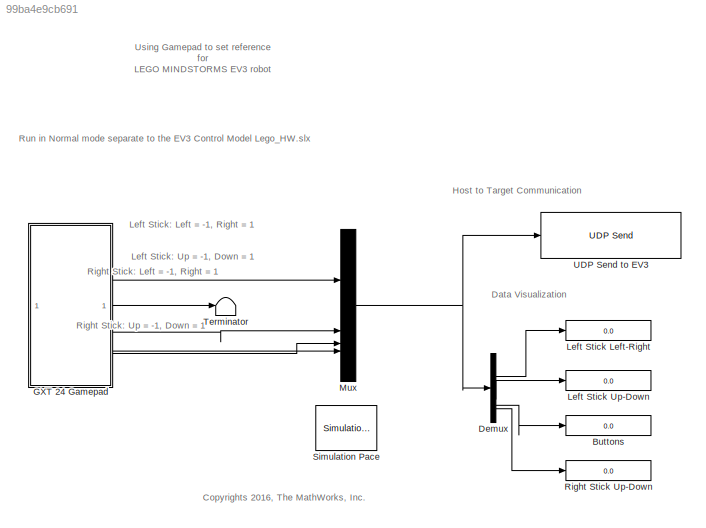
MODEL slx_99ba4e9cb691
KIND model
CONFIG AbsTol = auto
CONFIG EnableMultiTasking = off
CONFIG FixedStep = auto
CONFIG MaxStep = auto
CONFIG MinStep = auto
CONFIG RelTol = 1e-3
CONFIG SampleTimeConstraint = Unconstrained
CONFIG SolverName = VariableStepAuto
CONFIG StartTime = 0.0
CONFIG StopTime = inf
BLOCK [Display] Buttons
  Decimation = 1
BLOCK [Demux] Demux
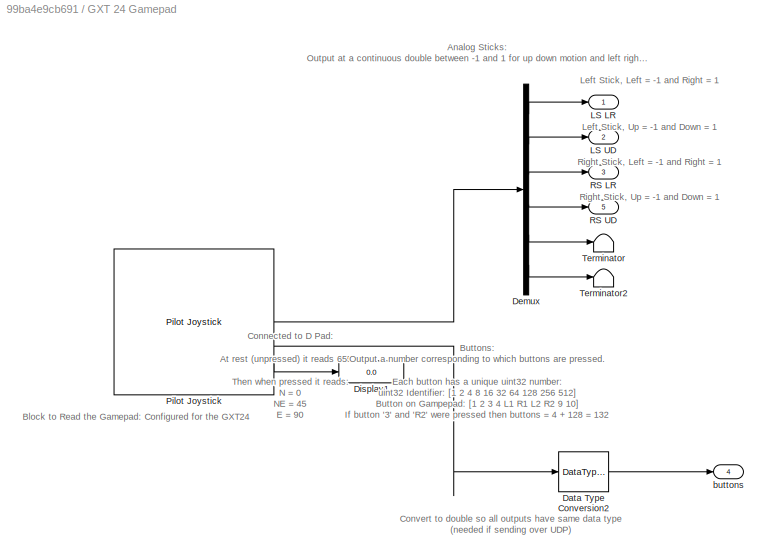
BLOCK [SubSystem] GXT 24 Gamepad
BLOCK [DataTypeConversion] GXT 24 Gamepad/Data Type Conversion2
  OutDataTypeStr = double
  RndMeth = Nearest
  SaturateOnIntegerOverflow = off
BLOCK [Demux] GXT 24 Gamepad/Demux
  Outputs = 6
BLOCK [Display] GXT 24 Gamepad/Display1
  Decimation = 1
BLOCK [Outport] GXT 24 Gamepad/LS LR
  VectorParamsAs1DForOutWhenUnconnected = off
BLOCK [Outport] GXT 24 Gamepad/LS UD
  Port = 2
  VectorParamsAs1DForOutWhenUnconnected = off
BLOCK [Reference] GXT 24 Gamepad/Pilot Joystick  REF=aerolibanimutils/Pilot Joystick
  SourceBlock = aerolibanimutils/Pilot Joystick
  SourceType = PilotJoystick
BLOCK [Outport] GXT 24 Gamepad/RS LR
  Port = 3
  VectorParamsAs1DForOutWhenUnconnected = off
BLOCK [Outport] GXT 24 Gamepad/RS UD
  Port = 5
  VectorParamsAs1DForOutWhenUnconnected = off
BLOCK [Terminator] GXT 24 Gamepad/Terminator
BLOCK [Terminator] GXT 24 Gamepad/Terminator2
BLOCK [Outport] GXT 24 Gamepad/buttons
  Port = 4
  VectorParamsAs1DForOutWhenUnconnected = off
BLOCK [Display] Left Stick Left-Right
  Decimation = 1
BLOCK [Display] Left Stick Up-Down
  Decimation = 1
BLOCK [Mux] Mux
  DisplayOption = bar
BLOCK [Display] Right Stick Up-Down
  Decimation = 1
BLOCK [Reference] Simulation Pace  REF=aerolibanimutils/Simulation Pace
  AttributesFormatString = %<SleepMode>\n%<SimulationPace> sec/sec
  Commented = on
  SourceBlock = aerolibanimutils/Simulation Pace
  SourceType = Simulation Pace
BLOCK [Terminator] Terminator
BLOCK [Reference] UDP Send to EV3  REF=instrumentlib/UDP Send
  SourceBlock = instrumentlib/UDP Send
  SourceType = instrument.system.UDPSend
ANNOTATION (root): Data Visualization
ANNOTATION (root): Host to Target Communication
ANNOTATION (root): Run in Normal mode separate to the EV3 Control Model Lego_HW.slx
ANNOTATION (root): Using Gamepad to set reference for LEGO MINDSTORMS EV3 robot
ANNOTATION (root): Copyrights 2016, The MathWorks, Inc.
ANNOTATION (root): Left Stick: Left = -1, Right = 1
ANNOTATION (root): Left Stick: Up = -1, Down = 1
ANNOTATION (root): Right Stick: Left = -1, Right = 1
ANNOTATION (root): Right Stick: Up = -1, Down = 1
ANNOTATION GXT 24 Gamepad: Convert to double so all outputs have same data type (needed if sending over UDP)
ANNOTATION GXT 24 Gamepad: Buttons: Output a number corresponding to which buttons are pressed. Each button has a unique uint32 number: uint32 Identifier: [1 2 4 8 16 32 64 128 256 512] Button on Gampepad: [1 2 3 4 L1 R1 L2 R2 9 10] If button '3' and 'R2' were pressed then buttons = 4 + 128 = 132
ANNOTATION GXT 24 Gamepad: Analog Sticks: Output at a continuous double between -1 and 1 for up down motion and left right motion. At rest outputs read 0.
ANNOTATION GXT 24 Gamepad: Connected to D Pad: At rest (unpressed) it reads 655.4 Then when pressed it reads: N = 0 NE = 45 E = 90 SE = 135 S = 180 SW = 225 W = 270 NW = 315
ANNOTATION GXT 24 Gamepad: Block to Read the Gamepad: Configured for the GXT24
ANNOTATION GXT 24 Gamepad: Left Stick, Left = -1 and Right = 1
ANNOTATION GXT 24 Gamepad: Left Stick, Up = -1 and Down = 1
ANNOTATION GXT 24 Gamepad: Right Stick, Left = -1 and Right = 1
ANNOTATION GXT 24 Gamepad: Right Stick, Up = -1 and Down = 1
LINE Demux:1 -> Left Stick Left-Right:1
LINE Demux:2 -> Left Stick Up-Down:1
LINE Demux:3 -> Buttons:1
LINE Demux:4 -> Right Stick Up-Down:1
LINE GXT 24 Gamepad/Data Type Conversion2:1 -> GXT 24 Gamepad/buttons:1
LINE GXT 24 Gamepad/Demux:1 -> GXT 24 Gamepad/LS LR:1
LINE GXT 24 Gamepad/Demux:2 -> GXT 24 Gamepad/LS UD:1
LINE GXT 24 Gamepad/Demux:3 -> GXT 24 Gamepad/RS LR:1
LINE GXT 24 Gamepad/Demux:4 -> GXT 24 Gamepad/RS UD:1
LINE GXT 24 Gamepad/Demux:5 -> GXT 24 Gamepad/Terminator:1
LINE GXT 24 Gamepad/Demux:6 -> GXT 24 Gamepad/Terminator2:1
LINE GXT 24 Gamepad/Pilot Joystick:1 -> GXT 24 Gamepad/Demux:1
LINE GXT 24 Gamepad/Pilot Joystick:2 -> GXT 24 Gamepad/Data Type Conversion2:1
LINE GXT 24 Gamepad/Pilot Joystick:3 -> GXT 24 Gamepad/Display1:1
LINE GXT 24 Gamepad:1 -> Mux:1
LINE GXT 24 Gamepad:2 -> Mux:2
LINE GXT 24 Gamepad:3 -> Terminator:1
LINE GXT 24 Gamepad:4 -> Mux:3
LINE GXT 24 Gamepad:5 -> Mux:4
NET Mux:1 -> Demux:1, UDP Send to EV3:1
note: NET lines group one-source signal fan-out (src -> all destinations, sorted); 1:1 wires keep LINE
